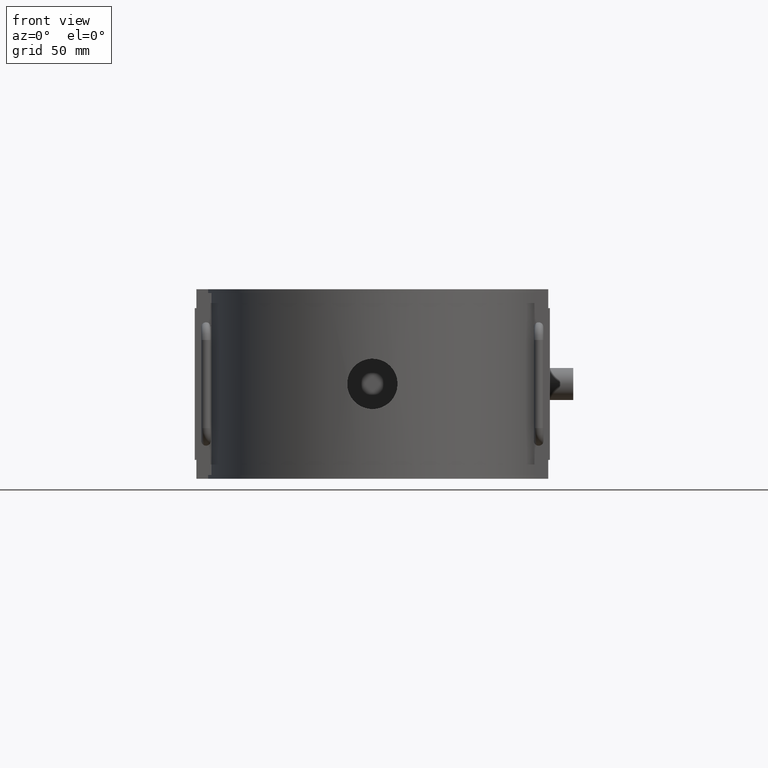
[diagram: clean part render]
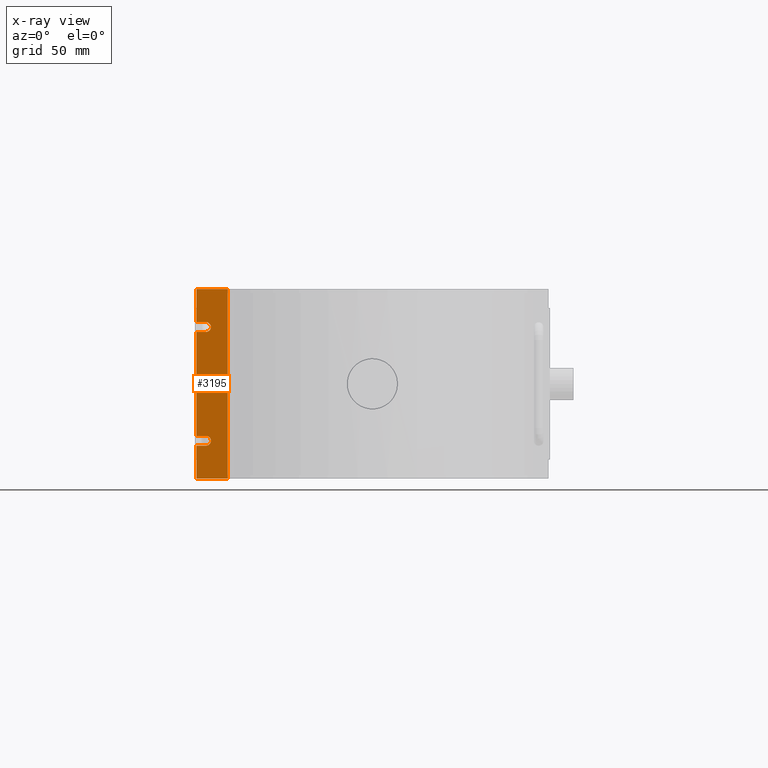
[diagram: x-ray — body ghosted, one internal face saturated and labeled with its STEP entity id]
A machine part, front view, then the same camera in x-ray: the body is ghosted and one INTERNAL B-rep face — a face not visible from any outside direction — is saturated and labeled: STEP entity #3195.
In plain terms, the highlighted planar face has unit normal (0, -1, 0).
Its self-contained STEP definition (entity closure, byte-faithful):
#245=LINE('',#6103,#524);
#248=LINE('',#6110,#527);
#250=LINE('',#6114,#529);
#253=LINE('',#6118,#532);
#255=LINE('',#6122,#534);
#256=LINE('',#6127,#535);
#258=LINE('',#6131,#537);
#261=LINE('',#6135,#540);
#262=LINE('',#6140,#541);
#264=LINE('',#6143,#543);
#266=LINE('',#6147,#545);
#311=LINE('',#6447,#590);
#312=LINE('',#6450,#591);
#313=LINE('',#6452,#592);
#524=VECTOR('',#4111,6.);
#527=VECTOR('',#4118,6.);
#529=VECTOR('',#4122,0.0243346729777727);
#532=VECTOR('',#4125,6.);
#534=VECTOR('',#4129,0.0243346729777727);
#535=VECTOR('',#4136,0.0243346729777727);
#537=VECTOR('',#4140,6.);
#540=VECTOR('',#4143,0.0243346729777727);
#541=VECTOR('',#4150,20.6);
#543=VECTOR('',#4154,64.8);
#545=VECTOR('',#4158,20.6);
#590=VECTOR('',#4305,118.);
#591=VECTOR('',#4310,19.50001388889);
#592=VECTOR('',#4313,19.50001388889);
#930=FACE_OUTER_BOUND('',#1166,.T.);
#1166=EDGE_LOOP('',(#2851,#2852,#2853,#2854,#2855,#2856,#2857,#2858,#2859,
#2860,#2861,#2862,#2863,#2864,#2865,#2866));
#1261=CIRCLE('',#3417,3.);
#1262=CIRCLE('',#3421,3.);
#1504=VERTEX_POINT('',#6044);
#1505=VERTEX_POINT('',#6046);
#1507=VERTEX_POINT('',#6051);
#1508=VERTEX_POINT('',#6053);
#1521=VERTEX_POINT('',#6101);
#1523=VERTEX_POINT('',#6109);
#1524=VERTEX_POINT('',#6113);
#1525=VERTEX_POINT('',#6116);
#1526=VERTEX_POINT('',#6120);
#1527=VERTEX_POINT('',#6126);
#1528=VERTEX_POINT('',#6130);
#1529=VERTEX_POINT('',#6133);
#1530=VERTEX_POINT('',#6139);
#1531=VERTEX_POINT('',#6145);
#1572=VERTEX_POINT('',#6444);
#1573=VERTEX_POINT('',#6446);
#1908=EDGE_CURVE('',#1504,#1521,#245,.T.);
#1911=EDGE_CURVE('',#1523,#1508,#248,.T.);
#1913=EDGE_CURVE('',#1524,#1507,#250,.T.);
#1916=EDGE_CURVE('',#1507,#1525,#253,.T.);
#1918=EDGE_CURVE('',#1508,#1526,#255,.T.);
#1919=EDGE_CURVE('',#1526,#1524,#1261,.T.);
#1920=EDGE_CURVE('',#1527,#1504,#256,.T.);
#1922=EDGE_CURVE('',#1528,#1505,#258,.T.);
#1925=EDGE_CURVE('',#1505,#1529,#261,.T.);
#1926=EDGE_CURVE('',#1529,#1527,#1262,.T.);
#1927=EDGE_CURVE('',#1528,#1530,#262,.T.);
#1929=EDGE_CURVE('',#1523,#1521,#264,.T.);
#1931=EDGE_CURVE('',#1531,#1525,#266,.T.);
#2002=EDGE_CURVE('',#1572,#1573,#311,.T.);
#2004=EDGE_CURVE('',#1530,#1572,#312,.T.);
#2005=EDGE_CURVE('',#1573,#1531,#313,.T.);
#2851=ORIENTED_EDGE('',*,*,#1913,.T.);
#2852=ORIENTED_EDGE('',*,*,#1916,.T.);
#2853=ORIENTED_EDGE('',*,*,#1931,.F.);
#2854=ORIENTED_EDGE('',*,*,#2005,.F.);
#2855=ORIENTED_EDGE('',*,*,#2002,.F.);
#2856=ORIENTED_EDGE('',*,*,#2004,.F.);
#2857=ORIENTED_EDGE('',*,*,#1927,.F.);
#2858=ORIENTED_EDGE('',*,*,#1922,.T.);
#2859=ORIENTED_EDGE('',*,*,#1925,.T.);
#2860=ORIENTED_EDGE('',*,*,#1926,.T.);
#2861=ORIENTED_EDGE('',*,*,#1920,.T.);
#2862=ORIENTED_EDGE('',*,*,#1908,.T.);
#2863=ORIENTED_EDGE('',*,*,#1929,.F.);
#2864=ORIENTED_EDGE('',*,*,#1911,.T.);
#2865=ORIENTED_EDGE('',*,*,#1918,.T.);
#2866=ORIENTED_EDGE('',*,*,#1919,.T.);
#3012=PLANE('',#3480);
#3195=ADVANCED_FACE('',(#930),#3012,.F.);
#3417=AXIS2_PLACEMENT_3D('',#6124,#4132,#4133);
#3421=AXIS2_PLACEMENT_3D('',#6137,#4146,#4147);
#3480=AXIS2_PLACEMENT_3D('',#6454,#4316,#4317);
#4111=DIRECTION('',(-1.,-1.58422235249023E-19,0.));
#4118=DIRECTION('',(1.,1.58422235249023E-19,0.));
#4122=DIRECTION('',(-1.,-1.58422235249023E-19,-7.37158929503088E-16));
#4125=DIRECTION('',(-1.,-1.58422235249023E-19,-7.37158929503088E-16));
#4129=DIRECTION('',(1.,1.58422235249023E-19,0.));
#4132=DIRECTION('center_axis',(1.58422235249023E-19,-1.,0.));
#4133=DIRECTION('ref_axis',(-1.,0.,0.));
#4136=DIRECTION('',(-1.,-1.58422235249023E-19,0.));
#4140=DIRECTION('',(1.,1.58422235249023E-19,0.));
#4143=DIRECTION('',(1.,1.58422235249023E-19,0.));
#4146=DIRECTION('center_axis',(1.58422235249023E-19,-1.,0.));
#4147=DIRECTION('ref_axis',(-1.,0.,0.));
#4150=DIRECTION('',(0.,0.,-1.));
#4154=DIRECTION('',(0.,0.,-1.));
#4158=DIRECTION('',(0.,0.,-1.));
#4305=DIRECTION('',(0.,0.,1.));
#4310=DIRECTION('',(1.,1.58422235249023E-19,0.));
#4313=DIRECTION('',(-1.,-1.58422235249023E-19,0.));
#4316=DIRECTION('center_axis',(1.58422235249023E-19,-1.,0.));
#4317=DIRECTION('ref_axis',(1.,0.,0.));
#6044=CARTESIAN_POINT('',(-103.5,-0.0499999999999989,-32.4));
#6046=CARTESIAN_POINT('',(-103.5,-0.0499999999999989,-38.4));
#6051=CARTESIAN_POINT('',(-103.5,-0.0499999999999901,38.4));
#6053=CARTESIAN_POINT('',(-103.5,-0.0499999999999901,32.4));
#6101=CARTESIAN_POINT('',(-109.5,-0.0499999999999989,-32.4));
#6103=CARTESIAN_POINT('',(-106.487832663511,-0.0499999999999989,-32.4));
#6109=CARTESIAN_POINT('',(-109.5,-0.0499999999999989,32.4));
#6110=CARTESIAN_POINT('',(-109.5,-0.0499999999999989,32.4));
#6113=CARTESIAN_POINT('',(-103.475665327022,-0.0499999999999989,38.4));
#6114=CARTESIAN_POINT('',(-106.487832663511,-0.0499999999999989,38.4));
#6116=CARTESIAN_POINT('',(-109.5,-0.0499999999999989,38.4));
#6118=CARTESIAN_POINT('',(-106.487832663511,-0.0499999999999989,38.4));
#6120=CARTESIAN_POINT('',(-103.475665327022,-0.0499999999999989,32.4));
#6122=CARTESIAN_POINT('',(-109.5,-0.0499999999999989,32.4));
#6124=CARTESIAN_POINT('Origin',(-103.475665327022,-0.0499999999999989,35.4));
#6126=CARTESIAN_POINT('',(-103.475665327022,-0.0499999999999989,-32.4));
#6127=CARTESIAN_POINT('',(-106.487832663511,-0.0499999999999989,-32.4));
#6130=CARTESIAN_POINT('',(-109.5,-0.0499999999999989,-38.4));
#6131=CARTESIAN_POINT('',(-109.5,-0.0499999999999989,-38.4));
#6133=CARTESIAN_POINT('',(-103.475665327022,-0.0499999999999989,-38.4));
#6135=CARTESIAN_POINT('',(-109.5,-0.0499999999999989,-38.4));
#6137=CARTESIAN_POINT('Origin',(-103.475665327022,-0.0499999999999989,-35.4));
#6139=CARTESIAN_POINT('',(-109.5,-0.0499999999999989,-59.));
#6140=CARTESIAN_POINT('',(-109.5,-0.0499999999999989,-29.5));
#6143=CARTESIAN_POINT('',(-109.5,-0.0499999999999989,-29.5));
#6145=CARTESIAN_POINT('',(-109.5,-0.0499999999999989,59.));
#6147=CARTESIAN_POINT('',(-109.5,-0.0499999999999989,-29.5));
#6444=CARTESIAN_POINT('',(-89.99998611111,-0.0499999999999989,-59.));
#6446=CARTESIAN_POINT('',(-89.99998611111,-0.0499999999999989,59.));
#6447=CARTESIAN_POINT('',(-89.99998611111,-0.0499999999999989,0.));
#6450=CARTESIAN_POINT('',(-107.703516699495,-0.0499999999999989,-59.));
#6452=CARTESIAN_POINT('',(-107.703516699495,-0.0499999999999989,59.));
#6454=CARTESIAN_POINT('Origin',(-109.5,-0.0499999999999989,-59.));